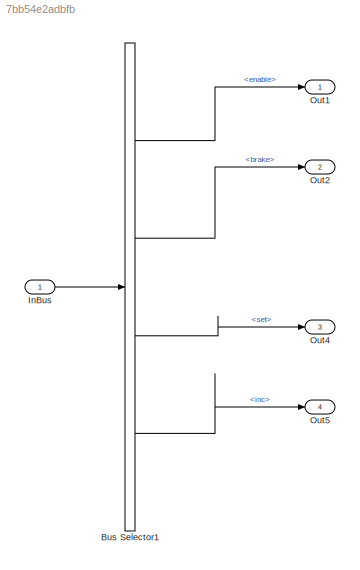
MODEL slx_7bb54e2adbfb
KIND model
CONFIG AbsTol = auto
CONFIG EnableMultiTasking = on
CONFIG FixedStep = auto
CONFIG MaxStep = auto
CONFIG MinStep = auto
CONFIG PreLoadFcn = busCell = { ...\n        { ...\n            'InputBus', ...\n            'MyHeader.h', ...\n            'My description', ...\n            'Exported', ...\n            '-1', ...\n            {{'enable',1,'double', [0.2 0],'real','Sample'}; ...\n             {'brake',1,'double', [0.2 0],'real','Sample'}; ...\n             {'Actual_speed',1,'double', [0.2 0],'real','Sample'}; ...\n             {'set',1,'doubl...<+220ch>
CONFIG RelTol = 1e-3
CONFIG SampleTimeConstraint = Unconstrained
CONFIG Solver = FixedStepDiscrete
CONFIG SolverName = FixedStepDiscrete
CONFIG StartTime = 0.0
CONFIG StopTime = 10.0
WORKSPACE source: MAT-file member
WORKSPACE C: cell (value not decoded)
BLOCK [BusSelector] Bus Selector1
  OutputAsBus = off
  OutputSignals = enable,brake,set,inc
  Ports = [1, 4]
BLOCK [Inport] InBus
  BusOutputAsStruct = on
  IconDisplay = Port number
  OutDataTypeStr = Bus: InputBus
  PortDimensions = 1
BLOCK [Outport] Out1
  IconDisplay = Port number
BLOCK [Outport] Out2
  IconDisplay = Port number
  Port = 2
BLOCK [Outport] Out4
  IconDisplay = Port number
  Port = 3
BLOCK [Outport] Out5
  IconDisplay = Port number
  Port = 4
LINE Bus Selector1:1 -> Out1:1
LINE Bus Selector1:2 -> Out2:1
LINE Bus Selector1:3 -> Out4:1
LINE Bus Selector1:4 -> Out5:1
LINE InBus:1 -> Bus Selector1:1
